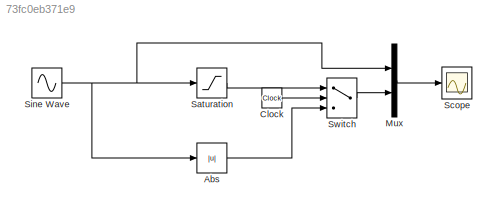
MODEL slx_73fc0eb371e9
KIND model
CONFIG AbsTol = auto
CONFIG EnableMultiTasking = on
CONFIG FixedStep = auto
CONFIG MaxStep = auto
CONFIG MinStep = auto
CONFIG RelTol = 1e-3
CONFIG SampleTimeConstraint = Unconstrained
CONFIG Solver = ode45
CONFIG SolverName = ode45
CONFIG StartTime = 0.0
CONFIG StopTime = 10.0
BLOCK [Abs] Abs
BLOCK [Clock] Clock
BLOCK [Mux] Mux
  DisplayOption = bar
  Inputs = 2
  Ports = [2, 1]
BLOCK [Saturate] Saturation
  AttributesFormatString = y < %<UpperLimit>\n
  InputPortMap = u0
  LowerLimit = -inf
  Ports = [1, 1]
  UpperLimit = 2
BLOCK [Scope] Scope
  Floating = off
  NumInputPorts = 1
  Ports = [1]
  ScopeSpecificationString = Simulink.scopes.TimeScopeBlockCfg('CurrentConfiguration', extmgr.ConfigurationSet(extmgr.Configuration('Core','General UI',true),extmgr.Configuration('Core','Source UI',true),extmgr.Configuration('Sources','WiredSimulink',true,'DataLoggingSaveFormat','StructureWithTime','DataLoggingLimitDataPoints',true,'DataLoggingDecimation','1','DataLoggingDecimateData',true),extmgr.Configuration('Visuals','Tim...<+2000ch>
BLOCK [Sin] Sine Wave
  Amplitude = 5
  AttributesFormatString = Amplitude: %<Amplitude>
  Ports = [0, 1]
  SampleTime = 0
BLOCK [Switch] Switch
  AttributesFormatString = %<Criteria>\nThreshold = %<Threshold>
  InputSameDT = off
  Threshold = 5
LINE Abs:1 -> Switch:3
LINE Clock:1 -> Switch:2
LINE Mux:1 -> Scope:1
LINE Saturation:1 -> Switch:1
NET Sine Wave:1 -> Abs:1, Mux:1, Saturation:1
LINE Switch:1 -> Mux:2
note: NET lines group one-source signal fan-out (src -> all destinations, sorted); 1:1 wires keep LINE
